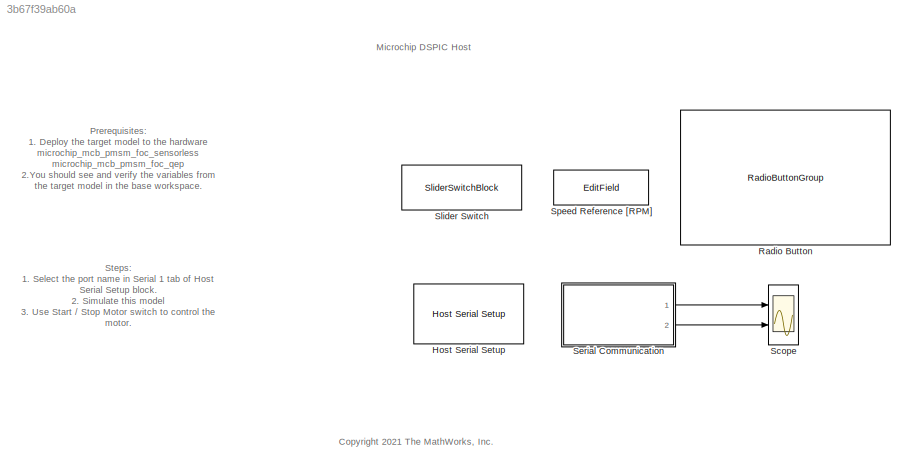
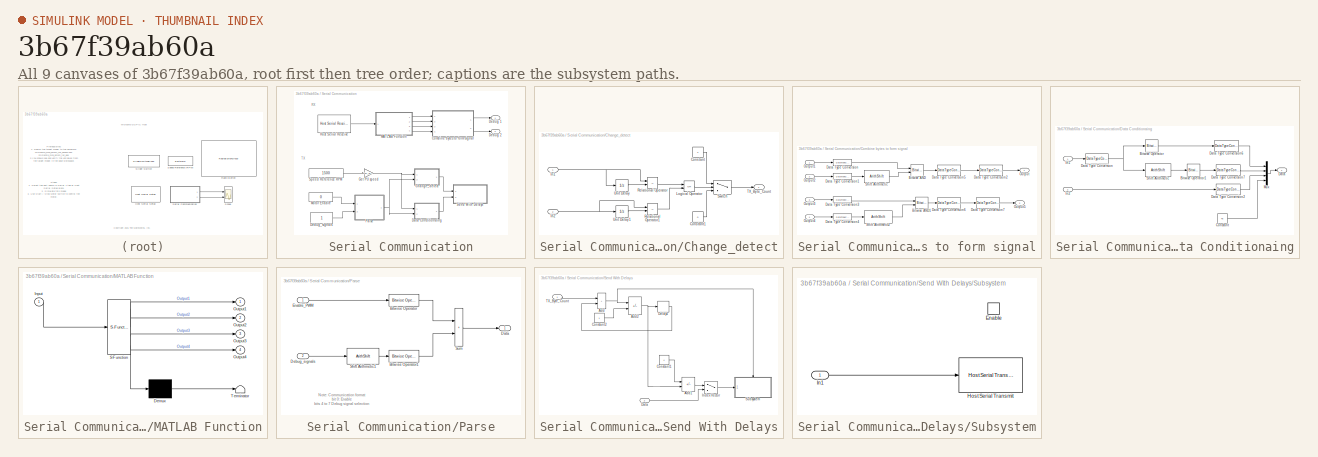
[diagram: thumbnail index - all 9 canvases of the model, root first then tree order]
MODEL slx_3b67f39ab60a
KIND model
CONFIG AbsTol = auto
CONFIG EnableMultiTasking = on
CONFIG FixedStep = auto
CONFIG MaxStep = auto
CONFIG MinStep = auto
CONFIG RelTol = 1e-3
CONFIG SampleTimeConstraint = Unconstrained
CONFIG SolverName = FixedStepDiscrete
CONFIG StartTime = 0.0
CONFIG StopTime = inf
BLOCK [Reference] Host Serial Setup  REF=mcbhostblockslib/Host Serial Setup
  Ports = []
  Priority = -99
  SourceBlock = mcbhostblockslib/Host Serial Setup
  SourceProductBaseCode = MT
  SourceType = Host Serial Setup
BLOCK [RadioButtonGroup] Radio Button
  ButtonGroupName = Scope signals
  LabelPosition = Hide
  SelectedLabel = Speed_ref & Speed_feedback
BLOCK [Scope] Scope
  Floating = off
  NumInputPorts = 2
  Ports = [2]
  ScopeSpecificationString = Simulink.scopes.TimeScopeBlockCfg('CurrentConfiguration', extmgr.ConfigurationSet(extmgr.Configuration('Core','General UI',true),extmgr.Configuration('Core','Source UI',true),extmgr.Configuration('Sources','WiredSimulink',true),extmgr.Configuration('Visuals','Time Domain',true,'InputProcessing','FrameProcessing','SerializedDisplays',{struct('MinYLimReal','-9.60791','MaxYLimReal','6.50537','YLabelR...<+1848ch>
BLOCK [SubSystem] Serial Communication
  Ports = [0, 2]
  RequestExecContextInheritance = off
BLOCK [SubSystem] Serial Communication/Change_detect
  Ports = [2, 1]
  RequestExecContextInheritance = off
BLOCK [Constant] Serial Communication/Change_detect/Constant
  OutDataTypeStr = uint8
  Value = 4
BLOCK [Constant] Serial Communication/Change_detect/Constant1
  OutDataTypeStr = uint8
  Value = 0
BLOCK [Inport] Serial Communication/Change_detect/In1
BLOCK [Inport] Serial Communication/Change_detect/In2
  Port = 2
BLOCK [Logic] Serial Communication/Change_detect/Logical Operator
  AllPortsSameDT = off
  Operator = OR
  OutDataTypeStr = boolean
  Ports = [2, 1]
BLOCK [RelationalOperator] Serial Communication/Change_detect/Relational Operator
  InputSameDT = off
  Operator = ~=
  OutDataTypeStr = boolean
  Ports = [2, 1]
BLOCK [RelationalOperator] Serial Communication/Change_detect/Relational Operator1
  InputSameDT = off
  Operator = ~=
  OutDataTypeStr = boolean
  Ports = [2, 1]
BLOCK [Switch] Serial Communication/Change_detect/Switch
  Criteria = u2 > Threshold
  InputSameDT = off
  SaturateOnIntegerOverflow = off
BLOCK [Outport] Serial Communication/Change_detect/TX_Byte_Count
  VectorParamsAs1DForOutWhenUnconnected = off
BLOCK [UnitDelay] Serial Communication/Change_detect/Unit Delay
  HasFrameUpgradeWarning = on
  InitialCondition = 0.5
  SampleTime = -1
BLOCK [UnitDelay] Serial Communication/Change_detect/Unit Delay1
  HasFrameUpgradeWarning = on
  SampleTime = -1
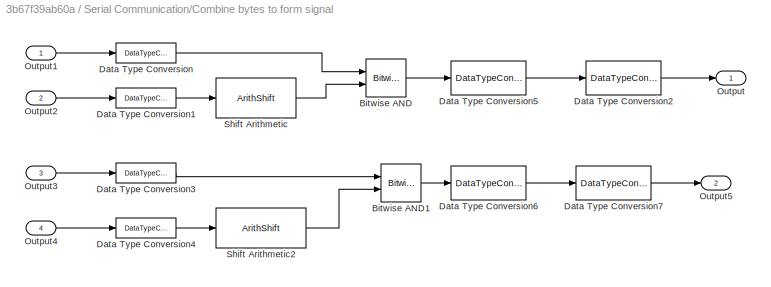
BLOCK [SubSystem] Serial Communication/Combine bytes to form signal
  Ports = [4, 2]
  RequestExecContextInheritance = off
BLOCK [Reference] Serial Communication/Combine bytes to form signal/Bitwise AND  REF=simulink/Logic and Bit
Operations/Bitwise
Operator
  Ports = [2, 1]
  SourceBlock = simulink/Logic and Bit\nOperations/Bitwise\nOperator
  SourceProductBaseCode = SL
  SourceType = Bitwise Operator
BLOCK [Reference] Serial Communication/Combine bytes to form signal/Bitwise AND1  REF=simulink/Logic and Bit
Operations/Bitwise
Operator
  Ports = [2, 1]
  SourceBlock = simulink/Logic and Bit\nOperations/Bitwise\nOperator
  SourceProductBaseCode = SL
  SourceType = Bitwise Operator
BLOCK [DataTypeConversion] Serial Communication/Combine bytes to form signal/Data Type Conversion
  OutDataTypeStr = uint16
  RndMeth = Simplest
  SaturateOnIntegerOverflow = off
BLOCK [DataTypeConversion] Serial Communication/Combine bytes to form signal/Data Type Conversion1
  OutDataTypeStr = uint16
  RndMeth = Simplest
  SaturateOnIntegerOverflow = off
BLOCK [DataTypeConversion] Serial Communication/Combine bytes to form signal/Data Type Conversion2
  OutDataTypeStr = single
  RndMeth = Simplest
  SaturateOnIntegerOverflow = off
BLOCK [DataTypeConversion] Serial Communication/Combine bytes to form signal/Data Type Conversion3
  OutDataTypeStr = uint16
  RndMeth = Simplest
  SaturateOnIntegerOverflow = off
BLOCK [DataTypeConversion] Serial Communication/Combine bytes to form signal/Data Type Conversion4
  OutDataTypeStr = uint16
  RndMeth = Simplest
  SaturateOnIntegerOverflow = off
BLOCK [DataTypeConversion] Serial Communication/Combine bytes to form signal/Data Type Conversion5
  ConvertRealWorld = Stored Integer (SI)
  OutDataTypeStr = fixdt(1,16,12)
  RndMeth = Simplest
  SaturateOnIntegerOverflow = off
BLOCK [DataTypeConversion] Serial Communication/Combine bytes to form signal/Data Type Conversion6
  ConvertRealWorld = Stored Integer (SI)
  OutDataTypeStr = fixdt(1,16,12)
  RndMeth = Simplest
  SaturateOnIntegerOverflow = off
BLOCK [DataTypeConversion] Serial Communication/Combine bytes to form signal/Data Type Conversion7
  OutDataTypeStr = single
  RndMeth = Simplest
  SaturateOnIntegerOverflow = off
BLOCK [Outport] Serial Communication/Combine bytes to form signal/Output
BLOCK [Inport] Serial Communication/Combine bytes to form signal/Output1
BLOCK [Inport] Serial Communication/Combine bytes to form signal/Output2
  Port = 2
BLOCK [Inport] Serial Communication/Combine bytes to form signal/Output3
  Port = 3
BLOCK [Inport] Serial Communication/Combine bytes to form signal/Output4
  Port = 4
BLOCK [Outport] Serial Communication/Combine bytes to form signal/Output5
  Port = 2
BLOCK [ArithShift] Serial Communication/Combine bytes to form signal/Shift Arithmetic
  BitShiftDirection = Left
  BitShiftNumber = 8
  InputPortMap = u0
  Ports = [1, 1]
BLOCK [ArithShift] Serial Communication/Combine bytes to form signal/Shift Arithmetic2
  BitShiftDirection = Left
  BitShiftNumber = 8
  InputPortMap = u0
  Ports = [1, 1]
BLOCK [SubSystem] Serial Communication/Data Conditionaing
  Ports = [2, 1]
  RequestExecContextInheritance = off
  VariantControl = ~isequal(dataType, 'single')
BLOCK [Reference] Serial Communication/Data Conditionaing/Bitwise Operator  REF=simulink/Logic and Bit
Operations/Bitwise
Operator
  Ports = [1, 1]
  SourceBlock = simulink/Logic and Bit\nOperations/Bitwise\nOperator
  SourceProductBaseCode = SL
  SourceType = Bitwise Operator
BLOCK [Reference] Serial Communication/Data Conditionaing/Bitwise Operator1  REF=simulink/Logic and Bit
Operations/Bitwise
Operator
  Ports = [1, 1]
  SourceBlock = simulink/Logic and Bit\nOperations/Bitwise\nOperator
  SourceProductBaseCode = SL
  SourceType = Bitwise Operator
BLOCK [Constant] Serial Communication/Data Conditionaing/Constant
  OutDataTypeStr = uint8
  Value = 45
BLOCK [Outport] Serial Communication/Data Conditionaing/Data
BLOCK [DataTypeConversion] Serial Communication/Data Conditionaing/Data Type Conversion
  ConvertRealWorld = Stored Integer (SI)
  OutDataTypeStr = uint16
  RndMeth = Simplest
  SaturateOnIntegerOverflow = off
BLOCK [DataTypeConversion] Serial Communication/Data Conditionaing/Data Type Conversion2
  OutDataTypeStr = uint8
  RndMeth = Simplest
  SaturateOnIntegerOverflow = off
BLOCK [DataTypeConversion] Serial Communication/Data Conditionaing/Data Type Conversion6
  OutDataTypeStr = uint8
  RndMeth = Simplest
  SaturateOnIntegerOverflow = off
BLOCK [DataTypeConversion] Serial Communication/Data Conditionaing/Data Type Conversion7
  OutDataTypeStr = uint8
  RndMeth = Simplest
  SaturateOnIntegerOverflow = off
BLOCK [Inport] Serial Communication/Data Conditionaing/In1
BLOCK [Inport] Serial Communication/Data Conditionaing/In2
  Port = 2
BLOCK [Mux] Serial Communication/Data Conditionaing/Mux
  DisplayOption = bar
  Ports = [4, 1]
BLOCK [ArithShift] Serial Communication/Data Conditionaing/Shift Arithmetic
  BitShiftDirection = Right
  BitShiftNumber = 8
  InputPortMap = u0
  Ports = [1, 1]
BLOCK [Outport] Serial Communication/Debug 1
BLOCK [Outport] Serial Communication/Debug 2
  Port = 2
BLOCK [Constant] Serial Communication/Debug_signals
  OutDataTypeStr = uint8
  SampleTime = 0.03
BLOCK [Gain] Serial Communication/Get PU speed
  Gain = 1/PU_System.N_base
  OutDataTypeStr = fixdt(1,16,14)
  RndMeth = Simplest
BLOCK [Reference] Serial Communication/Host Serial Receive  REF=mcbhostblockslib/Host Serial Receive
  Ports = [0, 1]
  SourceBlock = mcbhostblockslib/Host Serial Receive
  SourceProductBaseCode = MT
  SourceType = Host Serial Receive
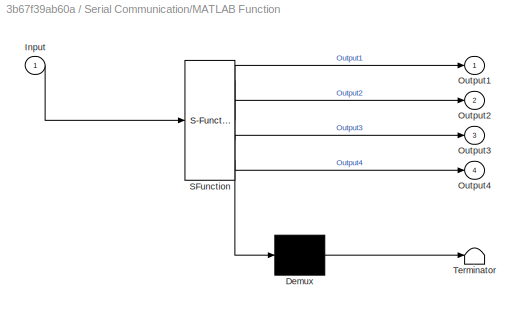
BLOCK [SubSystem] Serial Communication/MATLAB Function
  ErrorFcn = Stateflow.Translate.translate
  PermitHierarchicalResolution = ExplicitOnly
  Ports = [1, 4]
  RequestExecContextInheritance = off
  SFBlockType = MATLAB Function
  TreatAsAtomicUnit = on
BLOCK [Demux] Serial Communication/MATLAB Function/ Demux 
  Outputs = 1
  Ports = [1, 1]
BLOCK [S-Function] Serial Communication/MATLAB Function/ SFunction 
  EnableBusSupport = on
  FunctionName = sf_sfun
  PortCounts = [1 5]
  Ports = [1, 5]
  SFcnIsStateOwnerBlock = off
  SFunctionDeploymentMode = off
  Tag = Stateflow S-Function 3
BLOCK [Terminator] Serial Communication/MATLAB Function/ Terminator 
BLOCK [Inport] Serial Communication/MATLAB Function/Input
BLOCK [Outport] Serial Communication/MATLAB Function/Output1
BLOCK [Outport] Serial Communication/MATLAB Function/Output2
  Port = 2
BLOCK [Outport] Serial Communication/MATLAB Function/Output3
  Port = 3
BLOCK [Outport] Serial Communication/MATLAB Function/Output4
  Port = 4
BLOCK [Constant] Serial Communication/Motor Enable
  OutDataTypeStr = uint8
  SampleTime = 0.03
  Value = 0
  VectorParams1D = off
BLOCK [SubSystem] Serial Communication/Parse
  Ports = [2, 1]
  RequestExecContextInheritance = off
BLOCK [Reference] Serial Communication/Parse/Bitwise Operator  REF=simulink/Logic and Bit
Operations/Bitwise
Operator
  Ports = [1, 1]
  SourceBlock = simulink/Logic and Bit\nOperations/Bitwise\nOperator
  SourceProductBaseCode = SL
  SourceType = Bitwise Operator
BLOCK [Reference] Serial Communication/Parse/Bitwise Operator1  REF=simulink/Logic and Bit
Operations/Bitwise
Operator
  Ports = [1, 1]
  SourceBlock = simulink/Logic and Bit\nOperations/Bitwise\nOperator
  SourceProductBaseCode = SL
  SourceType = Bitwise Operator
BLOCK [Outport] Serial Communication/Parse/Data
BLOCK [Inport] Serial Communication/Parse/Debug_signals
  Port = 2
BLOCK [Inport] Serial Communication/Parse/Enable_PWM
BLOCK [ArithShift] Serial Communication/Parse/Shift Arithmetic1
  BitShiftNumber = -4
  InputPortMap = u0
  Ports = [1, 1]
BLOCK [Sum] Serial Communication/Parse/Sum
  IconShape = rectangular
  Ports = [2, 1]
BLOCK [SubSystem] Serial Communication/Send With Delays
  Ports = [2]
  RequestExecContextInheritance = off
BLOCK [Sum] Serial Communication/Send With Delays/Add
  IconShape = rectangular
  Ports = [2, 1]
  SaturateOnIntegerOverflow = on
BLOCK [Sum] Serial Communication/Send With Delays/Add1
  IconShape = rectangular
  Inputs = +-
  Ports = [2, 1]
  SaturateOnIntegerOverflow = on
BLOCK [Sum] Serial Communication/Send With Delays/Add2
  IconShape = rectangular
  Inputs = +-
  Ports = [2, 1]
  SaturateOnIntegerOverflow = on
BLOCK [Constant] Serial Communication/Send With Delays/Constant1
  OutDataTypeStr = uint8
  Value = 4
BLOCK [Constant] Serial Communication/Send With Delays/Constant2
  OutDataTypeStr = uint8
BLOCK [Inport] Serial Communication/Send With Delays/Data
  Port = 2
BLOCK [Delay] Serial Communication/Send With Delays/Delay4
  DelayLength = 1
  InputPortMap = u0
  Ports = [1, 1]
BLOCK [MultiPortSwitch] Serial Communication/Send With Delays/Index Vector
  InputSameDT = off
  Inputs = 1
  Ports = [2, 1]
  SaturateOnIntegerOverflow = off
BLOCK [SubSystem] Serial Communication/Send With Delays/Subsystem
  Ports = [1, 0, 1]
  RequestExecContextInheritance = off
BLOCK [EnablePort] Serial Communication/Send With Delays/Subsystem/Enable
  Ports = []
BLOCK [Reference] Serial Communication/Send With Delays/Subsystem/Host Serial Transmit  REF=mcbhostblockslib/Host Serial Transmit
  Ports = [1]
  SourceBlock = mcbhostblockslib/Host Serial Transmit
  SourceProductBaseCode = MT
  SourceType = Host Serial Transmit
BLOCK [Inport] Serial Communication/Send With Delays/Subsystem/In1
BLOCK [Inport] Serial Communication/Send With Delays/TX_Byte_Count
BLOCK [Constant] Serial Communication/Speed Reference RPM
  OutDataTypeStr = single
  SampleTime = 0.03
  Value = 1500
  VectorParams1D = off
BLOCK [SliderSwitchBlock] Slider Switch
  LabelPosition = Hide
BLOCK [EditField] Speed Reference [RPM]
  Alignment = Center
  LabelPosition = Hide
  ShowInitialText = on
ANNOTATION (root): <copyright redacted>
ANNOTATION (root): Steps: 1. Select the port name in Serial 1 tab of Host Serial Setup block. 2. Simulate this model 3. Use Start / Stop Motor switch to control the motor. 4. Enter Reference speed in RPM using edit box 5. Observe the signals from target in the scope. 6. You may select different combination of debug signals from the radio button box
ANNOTATION (root): Prerequisites: 1. Deploy the target model to the hardware microchip_mcb_pmsm_foc_sensorless microchip_mcb_pmsm_foc_qep 2.You should see and verify the variables from the target model in the base workspace.
ANNOTATION (root): Microchip DSPIC Host
ANNOTATION Serial Communication: RX
ANNOTATION Serial Communication: TX
ANNOTATION Serial Communication/Parse: Note : Communication format bit 0: Enable bits 4 to 7 Debug signal selection
LINE Serial Communication/Change_detect/Constant1:1 -> Serial Communication/Change_detect/Switch:3
LINE Serial Communication/Change_detect/Constant:1 -> Serial Communication/Change_detect/Switch:1
NET Serial Communication/Change_detect/In1:1 -> Serial Communication/Change_detect/Relational Operator:1, Serial Communication/Change_detect/Unit Delay:1
NET Serial Communication/Change_detect/In2:1 -> Serial Communication/Change_detect/Relational Operator1:1, Serial Communication/Change_detect/Unit Delay1:1
LINE Serial Communication/Change_detect/Logical Operator:1 -> Serial Communication/Change_detect/Switch:2
LINE Serial Communication/Change_detect/Relational Operator1:1 -> Serial Communication/Change_detect/Logical Operator:2
LINE Serial Communication/Change_detect/Relational Operator:1 -> Serial Communication/Change_detect/Logical Operator:1
LINE Serial Communication/Change_detect/Switch:1 -> Serial Communication/Change_detect/TX_Byte_Count:1
LINE Serial Communication/Change_detect/Unit Delay1:1 -> Serial Communication/Change_detect/Relational Operator1:2
LINE Serial Communication/Change_detect/Unit Delay:1 -> Serial Communication/Change_detect/Relational Operator:2
LINE Serial Communication/Change_detect:1 -> Serial Communication/Send With Delays:1
LINE Serial Communication/Combine bytes to form signal/Bitwise AND1:1 -> Serial Communication/Combine bytes to form signal/Data Type Conversion6:1
LINE Serial Communication/Combine bytes to form signal/Bitwise AND:1 -> Serial Communication/Combine bytes to form signal/Data Type Conversion5:1
LINE Serial Communication/Combine bytes to form signal/Data Type Conversion1:1 -> Serial Communication/Combine bytes to form signal/Shift Arithmetic:1
LINE Serial Communication/Combine bytes to form signal/Data Type Conversion2:1 -> Serial Communication/Combine bytes to form signal/Output:1
LINE Serial Communication/Combine bytes to form signal/Data Type Conversion3:1 -> Serial Communication/Combine bytes to form signal/Bitwise AND1:1
LINE Serial Communication/Combine bytes to form signal/Data Type Conversion4:1 -> Serial Communication/Combine bytes to form signal/Shift Arithmetic2:1
LINE Serial Communication/Combine bytes to form signal/Data Type Conversion5:1 -> Serial Communication/Combine bytes to form signal/Data Type Conversion2:1
LINE Serial Communication/Combine bytes to form signal/Data Type Conversion6:1 -> Serial Communication/Combine bytes to form signal/Data Type Conversion7:1
LINE Serial Communication/Combine bytes to form signal/Data Type Conversion7:1 -> Serial Communication/Combine bytes to form signal/Output5:1
LINE Serial Communication/Combine bytes to form signal/Data Type Conversion:1 -> Serial Communication/Combine bytes to form signal/Bitwise AND:1
LINE Serial Communication/Combine bytes to form signal/Output1:1 -> Serial Communication/Combine bytes to form signal/Data Type Conversion:1
LINE Serial Communication/Combine bytes to form signal/Output2:1 -> Serial Communication/Combine bytes to form signal/Data Type Conversion1:1
LINE Serial Communication/Combine bytes to form signal/Output3:1 -> Serial Communication/Combine bytes to form signal/Data Type Conversion3:1
LINE Serial Communication/Combine bytes to form signal/Output4:1 -> Serial Communication/Combine bytes to form signal/Data Type Conversion4:1
LINE Serial Communication/Combine bytes to form signal/Shift Arithmetic2:1 -> Serial Communication/Combine bytes to form signal/Bitwise AND1:2
LINE Serial Communication/Combine bytes to form signal/Shift Arithmetic:1 -> Serial Communication/Combine bytes to form signal/Bitwise AND:2
LINE Serial Communication/Combine bytes to form signal:1 -> Serial Communication/Debug 1:1
LINE Serial Communication/Combine bytes to form signal:2 -> Serial Communication/Debug 2:1
LINE Serial Communication/Data Conditionaing/Bitwise Operator1:1 -> Serial Communication/Data Conditionaing/Data Type Conversion7:1
LINE Serial Communication/Data Conditionaing/Bitwise Operator:1 -> Serial Communication/Data Conditionaing/Data Type Conversion6:1
LINE Serial Communication/Data Conditionaing/Constant:1 -> Serial Communication/Data Conditionaing/Mux:4
LINE Serial Communication/Data Conditionaing/Data Type Conversion2:1 -> Serial Communication/Data Conditionaing/Mux:3
LINE Serial Communication/Data Conditionaing/Data Type Conversion6:1 -> Serial Communication/Data Conditionaing/Mux:1
LINE Serial Communication/Data Conditionaing/Data Type Conversion7:1 -> Serial Communication/Data Conditionaing/Mux:2
NET Serial Communication/Data Conditionaing/Data Type Conversion:1 -> Serial Communication/Data Conditionaing/Bitwise Operator:1, Serial Communication/Data Conditionaing/Shift Arithmetic:1
LINE Serial Communication/Data Conditionaing/In1:1 -> Serial Communication/Data Conditionaing/Data Type Conversion:1
LINE Serial Communication/Data Conditionaing/In2:1 -> Serial Communication/Data Conditionaing/Data Type Conversion2:1
LINE Serial Communication/Data Conditionaing/Mux:1 -> Serial Communication/Data Conditionaing/Data:1
LINE Serial Communication/Data Conditionaing/Shift Arithmetic:1 -> Serial Communication/Data Conditionaing/Bitwise Operator1:1
LINE Serial Communication/Data Conditionaing:1 -> Serial Communication/Send With Delays:2
LINE Serial Communication/Debug_signals:1 -> Serial Communication/Parse:2
NET Serial Communication/Get PU speed:1 -> Serial Communication/Change_detect:1, Serial Communication/Data Conditionaing:1
LINE Serial Communication/Host Serial Receive:1 -> Serial Communication/MATLAB Function:1
LINE Serial Communication/MATLAB Function:1 -> Serial Communication/Combine bytes to form signal:1
LINE Serial Communication/MATLAB Function:2 -> Serial Communication/Combine bytes to form signal:2
LINE Serial Communication/MATLAB Function:3 -> Serial Communication/Combine bytes to form signal:3
LINE Serial Communication/MATLAB Function:4 -> Serial Communication/Combine bytes to form signal:4
LINE Serial Communication/Motor Enable:1 -> Serial Communication/Parse:1
LINE Serial Communication/Parse/Bitwise Operator1:1 -> Serial Communication/Parse/Sum:2
LINE Serial Communication/Parse/Bitwise Operator:1 -> Serial Communication/Parse/Sum:1
LINE Serial Communication/Parse/Debug_signals:1 -> Serial Communication/Parse/Shift Arithmetic1:1
LINE Serial Communication/Parse/Enable_PWM:1 -> Serial Communication/Parse/Bitwise Operator:1
LINE Serial Communication/Parse/Shift Arithmetic1:1 -> Serial Communication/Parse/Bitwise Operator1:1
LINE Serial Communication/Parse/Sum:1 -> Serial Communication/Parse/Data:1
NET Serial Communication/Parse:1 -> Serial Communication/Change_detect:2, Serial Communication/Data Conditionaing:2
LINE Serial Communication/Send With Delays/Add1:1 -> Serial Communication/Send With Delays/Index Vector:1
NET Serial Communication/Send With Delays/Add2:1 -> Serial Communication/Send With Delays/Add1:2, Serial Communication/Send With Delays/Delay4:1
NET Serial Communication/Send With Delays/Add:1 -> Serial Communication/Send With Delays/Add2:1, Serial Communication/Send With Delays/Subsystem:enable
LINE Serial Communication/Send With Delays/Constant1:1 -> Serial Communication/Send With Delays/Add1:1
LINE Serial Communication/Send With Delays/Constant2:1 -> Serial Communication/Send With Delays/Add2:2
LINE Serial Communication/Send With Delays/Data:1 -> Serial Communication/Send With Delays/Index Vector:2
LINE Serial Communication/Send With Delays/Delay4:1 -> Serial Communication/Send With Delays/Add:2
LINE Serial Communication/Send With Delays/Index Vector:1 -> Serial Communication/Send With Delays/Subsystem:1
LINE Serial Communication/Send With Delays/Subsystem/In1:1 -> Serial Communication/Send With Delays/Subsystem/Host Serial Transmit:1
LINE Serial Communication/Send With Delays/TX_Byte_Count:1 -> Serial Communication/Send With Delays/Add:1
LINE Serial Communication/Speed Reference RPM:1 -> Serial Communication/Get PU speed:1
LINE Serial Communication:1 -> Scope:1
LINE Serial Communication:2 -> Scope:2
note: NET lines group one-source signal fan-out (src -> all destinations, sorted); 1:1 wires keep LINE
CHART Serial Communication/MATLAB Function states=1 transitions=1
  STATE_LABEL 'eML_blk_kernel()'
  STATE_LABEL 'SCRIPT:\nfunction [ Output1, Output2, Output3, Output4] = unBuf(Input)\n\nOutput1= Input(:, 1);\nOutput2 = Input(:, 2);\nOutput3 = Input(:, 3);\nOutput4 = Input(:, 4);\n\nend'
CHART  states=0 transitions=0
